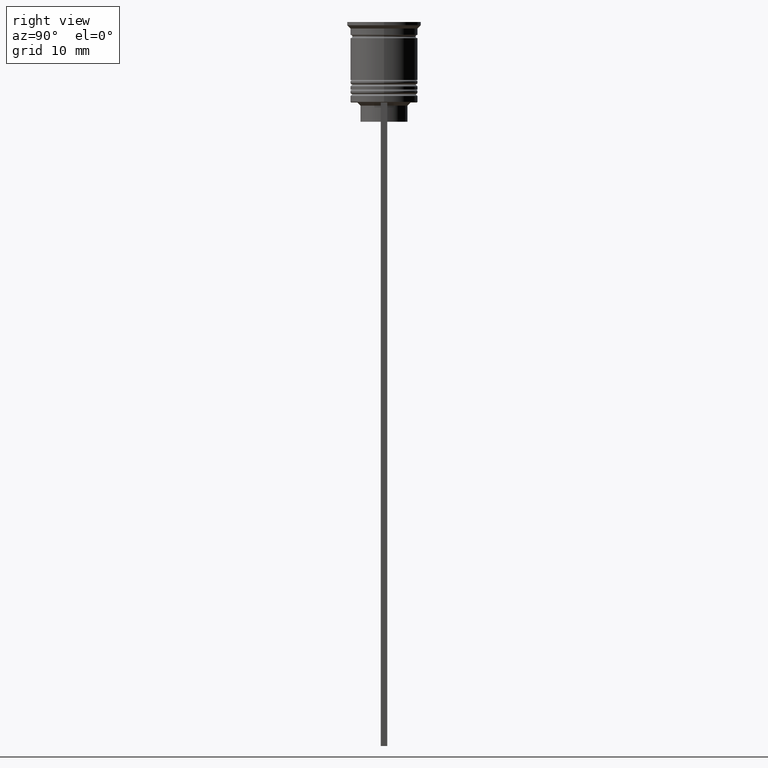
[diagram: clean part render]
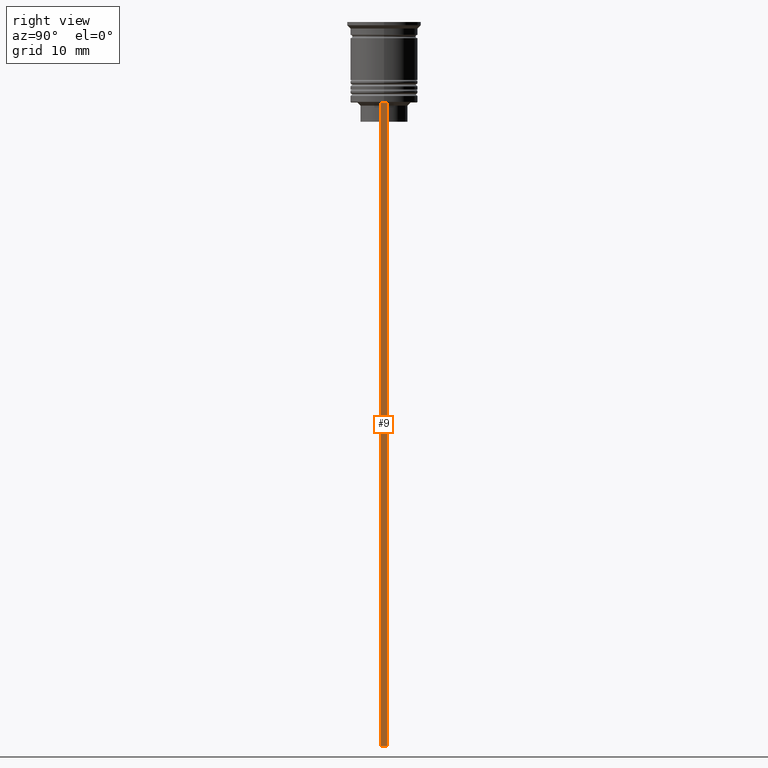
[diagram: same view with one face highlighted and labeled with its STEP entity id]
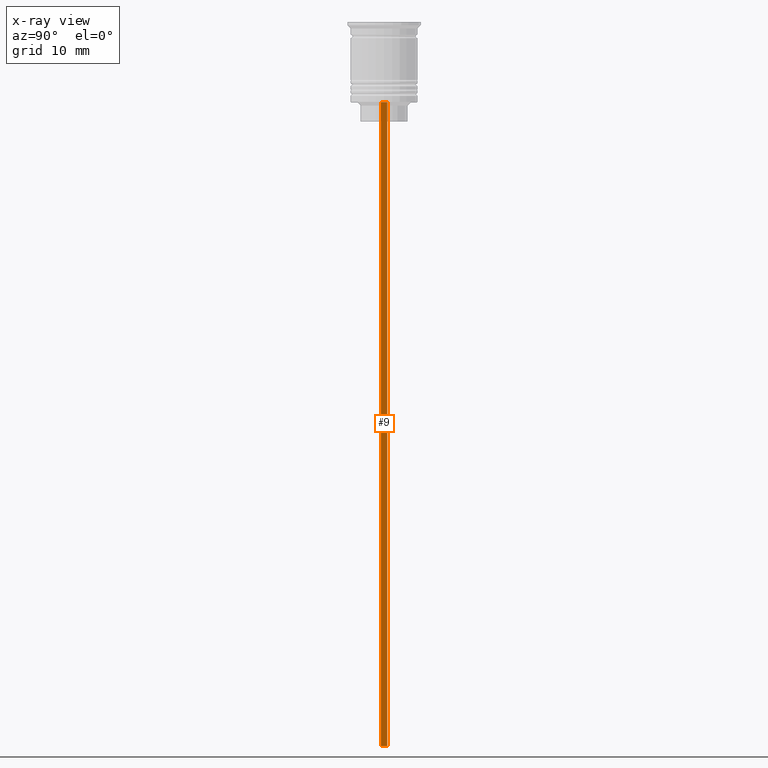
[diagram: x-ray of the same camera — body ghosted, the highlighted face saturated]
A machine part, right view. The second image highlights one B-rep face of the part: STEP entity #9.
The next image is the same camera in x-ray: the body ghosted, the highlighted face saturated — about 0% of this face is hidden behind the body in this view.
In plain terms, the highlighted planar face has unit normal (-1, 0, 0).
Its self-contained STEP definition (entity closure, byte-faithful):
#9 = ADVANCED_FACE ( 'NONE', ( #572 ), #1114, .F. ) ;
#33 = VECTOR ( 'NONE', #55, 1000.000000000000000 ) ;
#40 = DIRECTION ( 'NONE',  ( 0.000000000000000000, 0.000000000000000000, 1.000000000000000000 ) ) ;
#55 = DIRECTION ( 'NONE',  ( 0.000000000000000000, 0.000000000000000000, -1.000000000000000000 ) ) ;
#193 = CARTESIAN_POINT ( 'NONE',  ( 5.000000000000000000, -0.5000000000000008882, -2.450124378879110054 ) ) ;
#304 = CARTESIAN_POINT ( 'NONE',  ( 5.000000000000000000, -0.5000000000000008882, -112.5000000000000000 ) ) ;
#383 = LINE ( 'NONE', #393, #1800 ) ;
#393 = CARTESIAN_POINT ( 'NONE',  ( 5.000000000000000000, -0.5000000000000008882, -112.5000000000000000 ) ) ;
#420 = VERTEX_POINT ( 'NONE', #304 ) ;
#515 = EDGE_CURVE ( 'NONE', #420, #2151, #383, .T. ) ;
#572 = FACE_OUTER_BOUND ( 'NONE', #1968, .T. ) ;
#686 = LINE ( 'NONE', #1021, #1672 ) ;
#723 = DIRECTION ( 'NONE',  ( 0.000000000000000000, 1.000000000000000000, 0.000000000000000000 ) ) ;
#853 = DIRECTION ( 'NONE',  ( 0.000000000000000000, 0.000000000000000000, -1.000000000000000000 ) ) ;
#910 = ORIENTED_EDGE ( 'NONE', *, *, #2097, .T. ) ;
#934 = DIRECTION ( 'NONE',  ( -1.000000000000000000, 0.000000000000000000, 0.000000000000000000 ) ) ;
#953 = ORIENTED_EDGE ( 'NONE', *, *, #1284, .F. ) ;
#1021 = CARTESIAN_POINT ( 'NONE',  ( 5.000000000000000000, -0.5000000000000008882, -12.50000000000000000 ) ) ;
#1114 = PLANE ( 'NONE',  #1268 ) ;
#1157 = CARTESIAN_POINT ( 'NONE',  ( 5.000000000000000000, -0.5000000000000008882, -12.50000000000000000 ) ) ;
#1181 = CARTESIAN_POINT ( 'NONE',  ( 5.000000000000000000, 0.4999999999999991673, -112.5000000000000000 ) ) ;
#1268 = AXIS2_PLACEMENT_3D ( 'NONE', #1840, #934, #40 ) ;
#1284 = EDGE_CURVE ( 'NONE', #2118, #2151, #1599, .T. ) ;
#1459 = EDGE_CURVE ( 'NONE', #1495, #420, #1808, .T. ) ;
#1495 = VERTEX_POINT ( 'NONE', #1157 ) ;
#1520 = ORIENTED_EDGE ( 'NONE', *, *, #515, .T. ) ;
#1566 = DIRECTION ( 'NONE',  ( 0.000000000000000000, -1.000000000000000000, 0.000000000000000000 ) ) ;
#1599 = LINE ( 'NONE', #1612, #2258 ) ;
#1612 = CARTESIAN_POINT ( 'NONE',  ( 5.000000000000000000, 0.4999999999999991673, -2.450124378879110054 ) ) ;
#1672 = VECTOR ( 'NONE', #1566, 1000.000000000000000 ) ;
#1730 = CARTESIAN_POINT ( 'NONE',  ( 5.000000000000000000, 0.4999999999999991673, -12.50000000000000000 ) ) ;
#1800 = VECTOR ( 'NONE', #723, 1000.000000000000000 ) ;
#1808 = LINE ( 'NONE', #193, #33 ) ;
#1840 = CARTESIAN_POINT ( 'NONE',  ( 5.000000000000000000, -0.5000000000000008882, -2.450124378879110054 ) ) ;
#1968 = EDGE_LOOP ( 'NONE', ( #953, #910, #2034, #1520 ) ) ;
#2034 = ORIENTED_EDGE ( 'NONE', *, *, #1459, .T. ) ;
#2097 = EDGE_CURVE ( 'NONE', #2118, #1495, #686, .T. ) ;
#2118 = VERTEX_POINT ( 'NONE', #1730 ) ;
#2151 = VERTEX_POINT ( 'NONE', #1181 ) ;
#2258 = VECTOR ( 'NONE', #853, 1000.000000000000000 ) ;